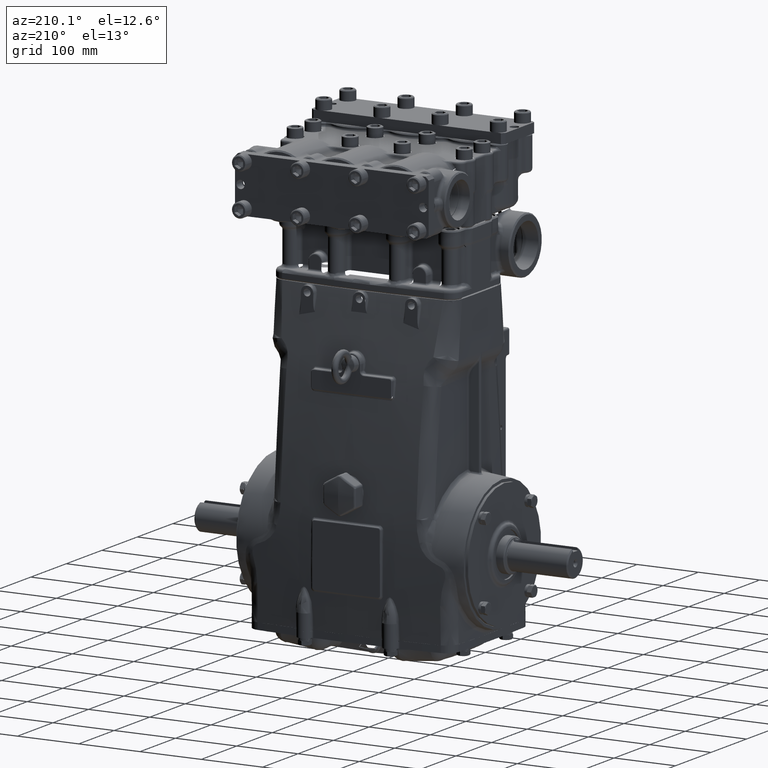
[diagram: clean part render]
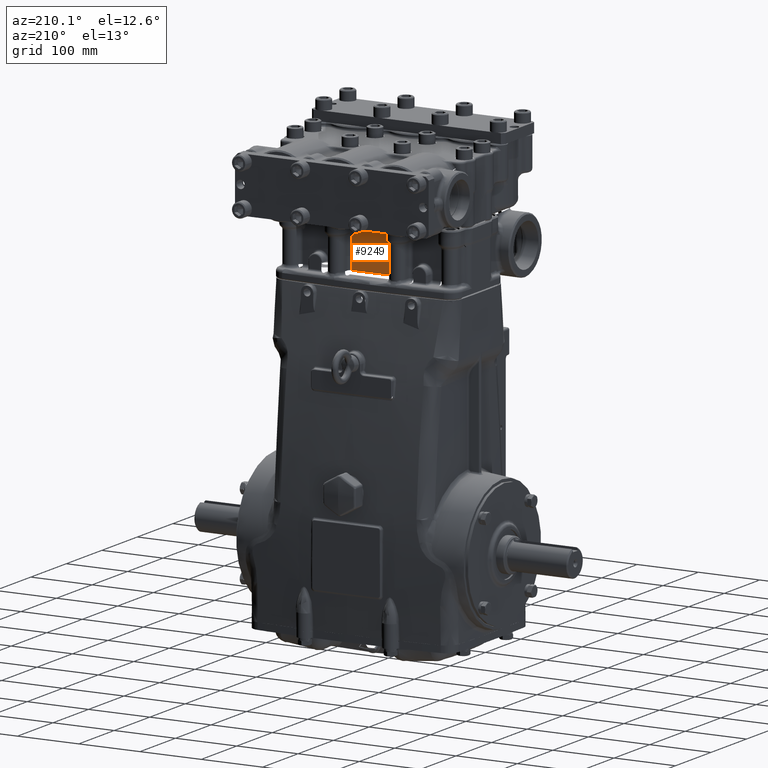
[diagram: same view with one face highlighted and labeled with its STEP entity id]
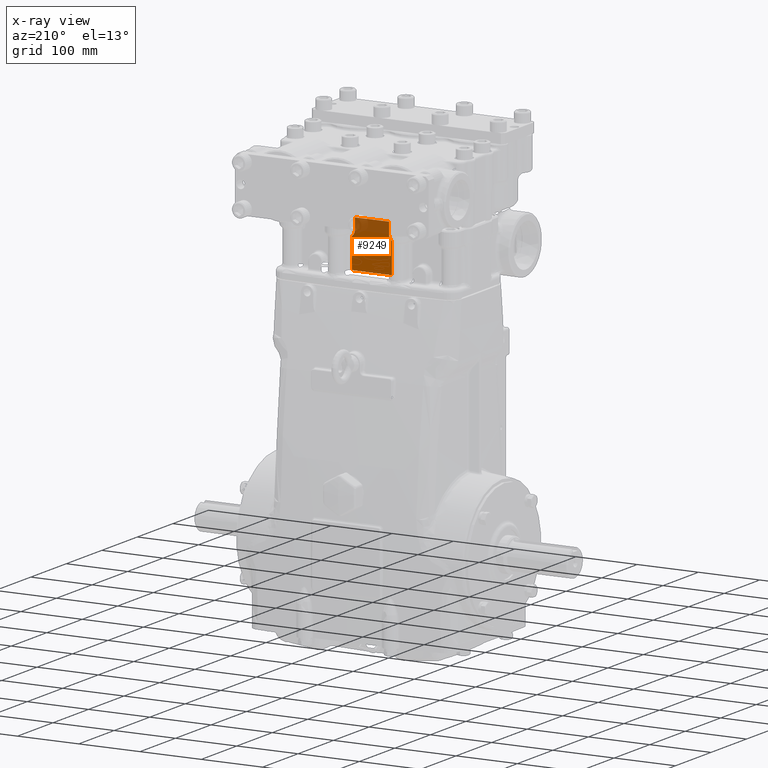
[diagram: x-ray of the same camera — body ghosted, the highlighted face saturated]
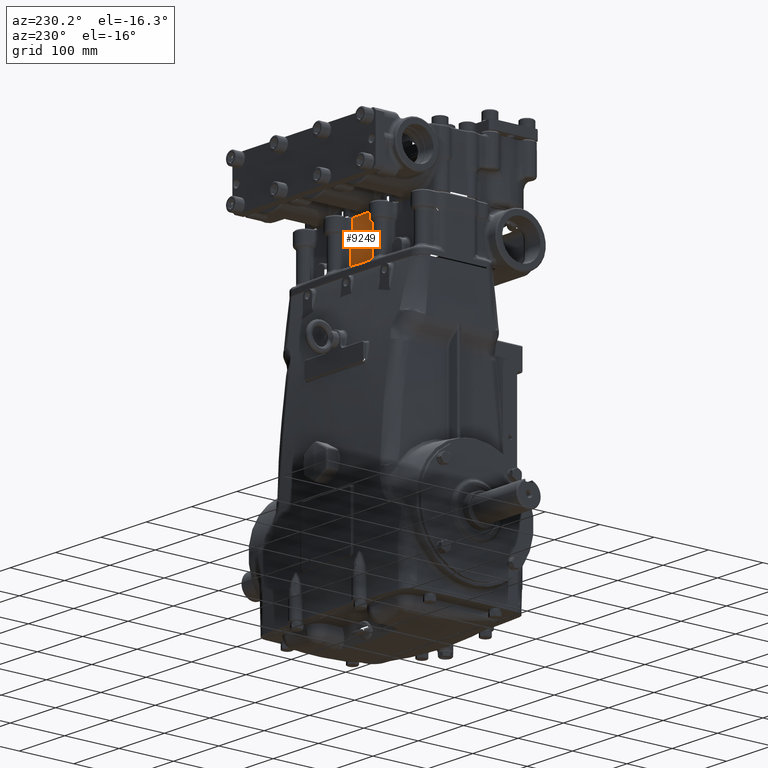
[diagram: same view with one face highlighted and labeled with its STEP entity id]
A machine part, auxiliary view. The second image highlights one B-rep face of the part: STEP entity #9249.
The next image is the same camera in x-ray: the body ghosted, the highlighted face saturated — about 22% of this face is hidden behind the body in this view.
A second angle (auxiliary view) of the same face is appended — the face is thin or edge-on in the first view.
In plain terms, the highlighted planar face has unit normal (0, 1, 0).
Its self-contained STEP definition (entity closure, byte-faithful):
#4177 = LINE ( 'NONE', #59868, #31552 ) ;
#6223 = CARTESIAN_POINT ( 'NONE',  ( 1.102362204724409711, 1.850393700787401619, 17.83464566929134065 ) ) ;
#7090 = VECTOR ( 'NONE', #49956, 39.37007874015748143 ) ;
#7723 = DIRECTION ( 'NONE',  ( 0.000000000000000000, 1.000000000000000000, 0.000000000000000000 ) ) ;
#8688 = EDGE_CURVE ( 'NONE', #9373, #11824, #59369, .T. ) ;
#9249 = ADVANCED_FACE ( 'NONE', ( #24853 ), #26709, .T. ) ;
#9373 = VERTEX_POINT ( 'NONE', #11497 ) ;
#10170 = EDGE_CURVE ( 'NONE', #9373, #37098, #4177, .T. ) ;
#11497 = CARTESIAN_POINT ( 'NONE',  ( 1.279527559055118502, 1.850393700787401619, 15.55118110236220552 ) ) ;
#11824 = VERTEX_POINT ( 'NONE', #93210 ) ;
#13062 = DIRECTION ( 'NONE',  ( 0.000000000000000000, 0.000000000000000000, 1.000000000000000000 ) ) ;
#13845 = CIRCLE ( 'NONE', #84465, 0.3937007874015751585 ) ;
#15161 = CARTESIAN_POINT ( 'NONE',  ( 1.496062992125984259, 1.850393700787401619, 17.83464566929134065 ) ) ;
#16573 = DIRECTION ( 'NONE',  ( -0.000000000000000000, -1.000000000000000000, -0.000000000000000000 ) ) ;
#18313 = DIRECTION ( 'NONE',  ( -1.000000000000000000, 0.000000000000000000, -0.000000000000000000 ) ) ;
#19225 = VERTEX_POINT ( 'NONE', #119499 ) ;
#20285 = LINE ( 'NONE', #67685, #7090 ) ;
#20358 = VERTEX_POINT ( 'NONE', #22723 ) ;
#22025 = LINE ( 'NONE', #61819, #91547 ) ;
#22723 = CARTESIAN_POINT ( 'NONE',  ( -1.102362204724409711, 1.850393700787401619, 17.83464566929134065 ) ) ;
#23522 = VERTEX_POINT ( 'NONE', #6223 ) ;
#24853 = FACE_OUTER_BOUND ( 'NONE', #57727, .T. ) ;
#26709 = PLANE ( 'NONE',  #33352 ) ;
#28735 = CIRCLE ( 'NONE', #99356, 0.3937007874015751585 ) ;
#31552 = VECTOR ( 'NONE', #13062, 39.37007874015748143 ) ;
#31984 = VERTEX_POINT ( 'NONE', #119709 ) ;
#33352 = AXIS2_PLACEMENT_3D ( 'NONE', #124644, #7723, #64008 ) ;
#34100 = EDGE_CURVE ( 'NONE', #11824, #93921, #22025, .T. ) ;
#37098 = VERTEX_POINT ( 'NONE', #113760 ) ;
#39236 = LINE ( 'NONE', #59465, #108824 ) ;
#44288 = LINE ( 'NONE', #119544, #68134 ) ;
#47339 = CARTESIAN_POINT ( 'NONE',  ( -1.279527559055118502, 1.850393700787401619, 15.55118110236220552 ) ) ;
#48520 = ORIENTED_EDGE ( 'NONE', *, *, #81121, .F. ) ;
#49956 = DIRECTION ( 'NONE',  ( 1.000000000000000000, 0.000000000000000000, 0.000000000000000000 ) ) ;
#50432 = DIRECTION ( 'NONE',  ( 0.000000000000000000, -0.000000000000000000, 1.000000000000000000 ) ) ;
#53474 = CARTESIAN_POINT ( 'NONE',  ( -1.279527559055118502, 1.850393700787401619, 17.50584068723444986 ) ) ;
#56412 = ORIENTED_EDGE ( 'NONE', *, *, #8688, .T. ) ;
#57727 = EDGE_LOOP ( 'NONE', ( #79667, #83918, #48520, #92774, #70854, #56412, #115025, #64781 ) ) ;
#59369 = LINE ( 'NONE', #47339, #59525 ) ;
#59465 = CARTESIAN_POINT ( 'NONE',  ( -1.102362204724409711, 1.850393700787401619, 18.66141732283464449 ) ) ;
#59525 = VECTOR ( 'NONE', #18313, 39.37007874015748143 ) ;
#59868 = CARTESIAN_POINT ( 'NONE',  ( 1.279527559055118502, 1.850393700787401619, 17.44143731583783463 ) ) ;
#61819 = CARTESIAN_POINT ( 'NONE',  ( -1.279527559055118502, 1.850393700787401619, 17.44143731583783463 ) ) ;
#63980 = CARTESIAN_POINT ( 'NONE',  ( -1.496062992125984259, 1.850393700787401619, 17.83464566929134065 ) ) ;
#64008 = DIRECTION ( 'NONE',  ( 0.000000000000000000, -0.000000000000000000, 1.000000000000000000 ) ) ;
#64781 = ORIENTED_EDGE ( 'NONE', *, *, #72260, .T. ) ;
#67685 = CARTESIAN_POINT ( 'NONE',  ( -1.476377952755905776, 1.850393700787401619, 18.58267716535432967 ) ) ;
#68134 = VECTOR ( 'NONE', #82853, 39.37007874015748143 ) ;
#70854 = ORIENTED_EDGE ( 'NONE', *, *, #10170, .F. ) ;
#72260 = EDGE_CURVE ( 'NONE', #93921, #20358, #28735, .T. ) ;
#79667 = ORIENTED_EDGE ( 'NONE', *, *, #108308, .T. ) ;
#81121 = EDGE_CURVE ( 'NONE', #23522, #31984, #44288, .T. ) ;
#81531 = DIRECTION ( 'NONE',  ( 0.000000000000000000, 1.000000000000000000, 0.000000000000000000 ) ) ;
#82853 = DIRECTION ( 'NONE',  ( 0.000000000000000000, 0.000000000000000000, 1.000000000000000000 ) ) ;
#83556 = DIRECTION ( 'NONE',  ( 2.081668171172166541E-15, 0.000000000000000000, 1.000000000000000000 ) ) ;
#83918 = ORIENTED_EDGE ( 'NONE', *, *, #100389, .T. ) ;
#84465 = AXIS2_PLACEMENT_3D ( 'NONE', #15161, #81531, #92230 ) ;
#91547 = VECTOR ( 'NONE', #50432, 39.37007874015748143 ) ;
#92230 = DIRECTION ( 'NONE',  ( -2.081668171172166541E-15, 0.000000000000000000, 1.000000000000000000 ) ) ;
#92774 = ORIENTED_EDGE ( 'NONE', *, *, #109350, .F. ) ;
#93210 = CARTESIAN_POINT ( 'NONE',  ( -1.279527559055118502, 1.850393700787401619, 15.55118110236220552 ) ) ;
#93921 = VERTEX_POINT ( 'NONE', #53474 ) ;
#97977 = DIRECTION ( 'NONE',  ( 0.000000000000000000, -0.000000000000000000, 1.000000000000000000 ) ) ;
#99356 = AXIS2_PLACEMENT_3D ( 'NONE', #63980, #16573, #83556 ) ;
#100389 = EDGE_CURVE ( 'NONE', #19225, #31984, #20285, .T. ) ;
#108308 = EDGE_CURVE ( 'NONE', #20358, #19225, #39236, .T. ) ;
#108824 = VECTOR ( 'NONE', #97977, 39.37007874015748143 ) ;
#109350 = EDGE_CURVE ( 'NONE', #37098, #23522, #13845, .T. ) ;
#113760 = CARTESIAN_POINT ( 'NONE',  ( 1.279527559055118502, 1.850393700787401619, 17.50584068723444986 ) ) ;
#115025 = ORIENTED_EDGE ( 'NONE', *, *, #34100, .T. ) ;
#119499 = CARTESIAN_POINT ( 'NONE',  ( -1.102362204724409711, 1.850393700787401619, 18.58267716535432967 ) ) ;
#119544 = CARTESIAN_POINT ( 'NONE',  ( 1.102362204724409711, 1.850393700787401619, 18.66141732283464449 ) ) ;
#119709 = CARTESIAN_POINT ( 'NONE',  ( 1.102362204724409711, 1.850393700787401619, 18.58267716535432967 ) ) ;
#124644 = CARTESIAN_POINT ( 'NONE',  ( -1.476377952755905776, 1.850393700787401619, 7.714455596109938362 ) ) ;